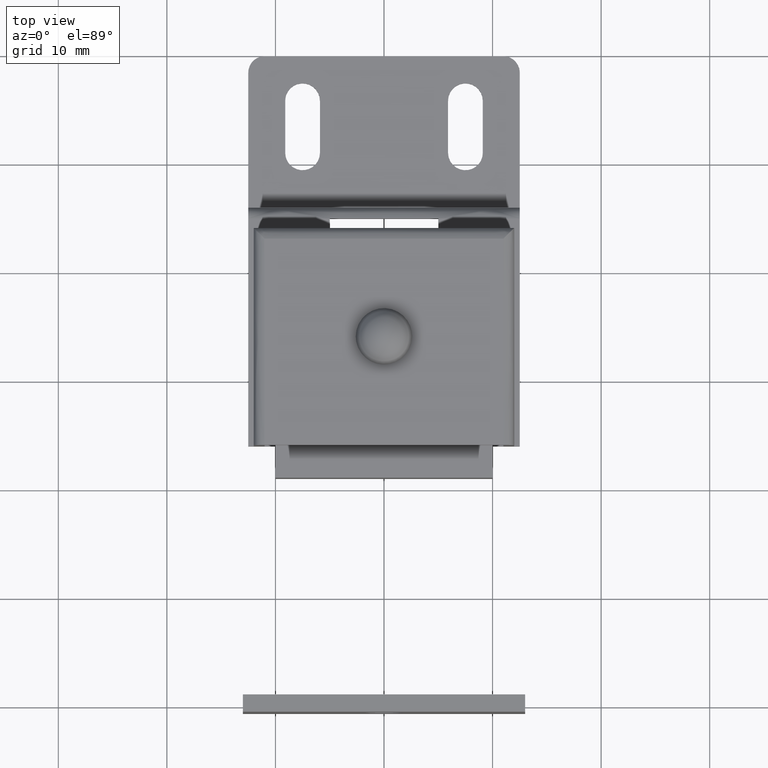
[diagram: clean part render]
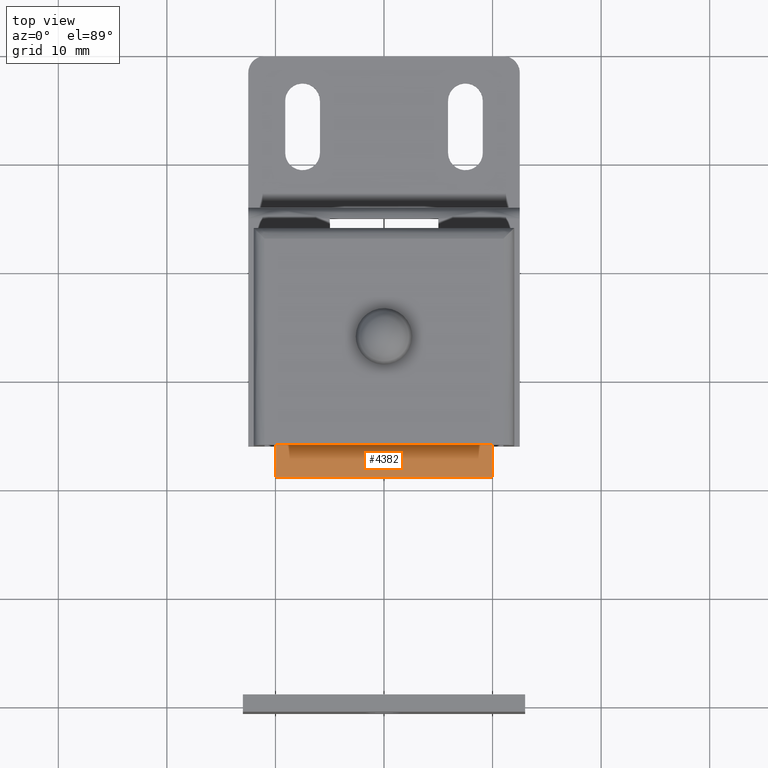
[diagram: same view with one face highlighted and labeled with its STEP entity id]
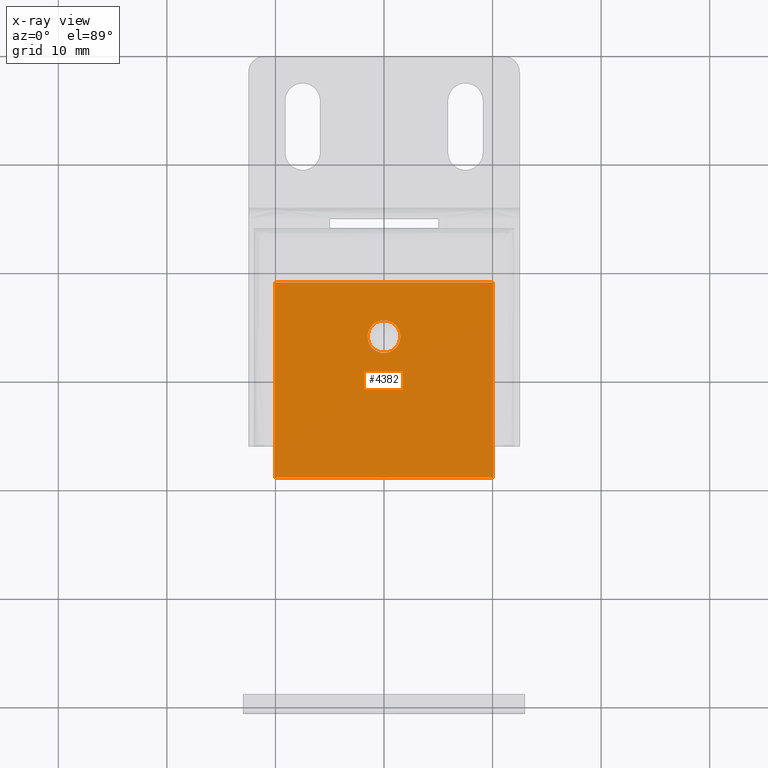
[diagram: x-ray of the same camera — body ghosted, the highlighted face saturated]
A machine part, top view. The second image highlights one B-rep face of the part: STEP entity #4382.
The next image is the same camera in x-ray: the body ghosted, the highlighted face saturated — about 0% of this face is hidden behind the body in this view.
In plain terms, the highlighted face is a freeform B-spline surface patch.
Its self-contained STEP definition (entity closure, byte-faithful):
#4177=CARTESIAN_POINT('',(-0.013089803400145,-24.500057115405070,10.399993999999900));
#4178=VERTEX_POINT('',#4177);
#4179=CARTESIAN_POINT('',(-1.500000000000000,-26.0,10.399993999999900));
#4180=VERTEX_POINT('',#4179);
#4181=CARTESIAN_POINT('',(-0.013089803400145,-24.500057115405070,10.399993999999896));
#4182=CARTESIAN_POINT('',(-1.499999999999999,-24.513033184258809,10.399993999999900));
#4183=CARTESIAN_POINT('',(-1.500000000000000,-26.0,10.399993999999900));
#4191=(BOUNDED_CURVE()B_SPLINE_CURVE(2,(#4181,#4182,#4183),.UNSPECIFIED.,.F.,.U.)B_SPLINE_CURVE_WITH_KNOTS((3,3),(0.751539894352906,1.0),.UNSPECIFIED.)CURVE()GEOMETRIC_REPRESENTATION_ITEM()RATIONAL_B_SPLINE_CURVE((0.996414028058938,0.708910879641168,1.0))REPRESENTATION_ITEM(''));
#4192=EDGE_CURVE('',#4178,#4180,#4191,.T.);
#4194=CARTESIAN_POINT('',(0.013089803400145,-27.499942884594930,10.399993999999900));
#4195=VERTEX_POINT('',#4194);
#4196=CARTESIAN_POINT('',(-1.500000000000000,-26.0,10.399993999999900));
#4197=CARTESIAN_POINT('',(-1.500000000000000,-27.500000000000004,10.399993999999900));
#4198=CARTESIAN_POINT('',(0.0,-27.500000000000000,10.399993999999900));
#4199=CARTESIAN_POINT('',(0.006545026307349,-27.500000000000000,10.399993999999904));
#4200=CARTESIAN_POINT('',(0.013089803400145,-27.499942884594926,10.399993999999896));
#4208=(BOUNDED_CURVE()B_SPLINE_CURVE(2,(#4196,#4197,#4198,#4199,#4200),.UNSPECIFIED.,.F.,.U.)B_SPLINE_CURVE_WITH_KNOTS((3,2,3),(0.0,0.250000000000000,0.251539894352906),.UNSPECIFIED.)CURVE()GEOMETRIC_REPRESENTATION_ITEM()RATIONAL_B_SPLINE_CURVE((1.0,0.707106781186548,1.0,0.998195901545379,0.996414028058938))REPRESENTATION_ITEM(''));
#4209=EDGE_CURVE('',#4180,#4195,#4208,.T.);
#4276=CARTESIAN_POINT('',(1.500000000000000,-26.0,10.399993999999900));
#4277=VERTEX_POINT('',#4276);
#4278=CARTESIAN_POINT('',(1.500000000000000,-26.0,10.399993999999900));
#4279=CARTESIAN_POINT('',(1.500000000000000,-24.500000000000004,10.399993999999900));
#4280=CARTESIAN_POINT('',(0.0,-24.500000000000000,10.399993999999900));
#4281=CARTESIAN_POINT('',(-0.006545026307349,-24.499999999999996,10.399993999999904));
#4282=CARTESIAN_POINT('',(-0.013089803400145,-24.500057115405070,10.399993999999896));
#4290=(BOUNDED_CURVE()B_SPLINE_CURVE(2,(#4278,#4279,#4280,#4281,#4282),.UNSPECIFIED.,.F.,.U.)B_SPLINE_CURVE_WITH_KNOTS((3,2,3),(0.500000000000000,0.750000000000000,0.751539894352906),.UNSPECIFIED.)CURVE()GEOMETRIC_REPRESENTATION_ITEM()RATIONAL_B_SPLINE_CURVE((1.0,0.707106781186548,1.0,0.998195901545379,0.996414028058938))REPRESENTATION_ITEM(''));
#4291=EDGE_CURVE('',#4277,#4178,#4290,.T.);
#4325=CARTESIAN_POINT('',(0.013089803400145,-27.499942884594926,10.399993999999896));
#4326=CARTESIAN_POINT('',(1.499999999999999,-27.486966815741191,10.399993999999900));
#4327=CARTESIAN_POINT('',(1.500000000000000,-26.0,10.399993999999900));
#4335=(BOUNDED_CURVE()B_SPLINE_CURVE(2,(#4325,#4326,#4327),.UNSPECIFIED.,.F.,.U.)B_SPLINE_CURVE_WITH_KNOTS((3,3),(0.251539894352906,0.500000000000000),.UNSPECIFIED.)CURVE()GEOMETRIC_REPRESENTATION_ITEM()RATIONAL_B_SPLINE_CURVE((0.996414028058938,0.708910879641168,1.0))REPRESENTATION_ITEM(''));
#4336=EDGE_CURVE('',#4195,#4277,#4335,.T.);
#4341=CARTESIAN_POINT('',(10.999000061136121,-39.899099965112512,10.399993999999900));
#4342=CARTESIAN_POINT('',(-10.999002597577970,-39.899099965112512,10.399993999999900));
#4343=CARTESIAN_POINT('',(10.999000061136121,-20.100899552089860,10.399993999999900));
#4344=CARTESIAN_POINT('',(-10.999002597577970,-20.100899552089860,10.399993999999900));
#4345=B_SPLINE_SURFACE_WITH_KNOTS('',1,1,((#4341,#4343),(#4342,#4344)),.UNSPECIFIED.,.F.,.F.,.U.,(2,2),(2,2),(0.0,21.998002658714089),(0.0,19.798200413022641),.UNSPECIFIED.);
#4346=CARTESIAN_POINT('',(-10.000002000000000,-39.0,10.399993999999900));
#4347=VERTEX_POINT('',#4346);
#4348=CARTESIAN_POINT('',(10.0,-39.0,10.399993999999900));
#4349=VERTEX_POINT('',#4348);
#4350=CARTESIAN_POINT('',(-10.000002000000000,-39.0,10.399993999999900));
#4351=CARTESIAN_POINT('',(10.0,-39.0,10.399993999999900));
#4352=QUASI_UNIFORM_CURVE('',1,(#4350,#4351),.UNSPECIFIED.,.F.,.U.);
#4353=EDGE_CURVE('',#4347,#4349,#4352,.T.);
#4354=ORIENTED_EDGE('',*,*,#4353,.T.);
#4355=CARTESIAN_POINT('',(10.0,-21.0,10.399993999999900));
#4356=VERTEX_POINT('',#4355);
#4357=CARTESIAN_POINT('',(10.0,-21.0,10.399993999999900));
#4358=CARTESIAN_POINT('',(10.0,-39.0,10.399993999999900));
#4359=QUASI_UNIFORM_CURVE('',1,(#4357,#4358),.UNSPECIFIED.,.F.,.U.);
#4360=EDGE_CURVE('',#4356,#4349,#4359,.T.);
#4361=ORIENTED_EDGE('',*,*,#4360,.F.);
#4362=CARTESIAN_POINT('',(-10.000002000000000,-21.0,10.399993999999900));
#4363=VERTEX_POINT('',#4362);
#4364=CARTESIAN_POINT('',(-10.000002000000000,-21.0,10.399993999999900));
#4365=CARTESIAN_POINT('',(10.0,-21.0,10.399993999999900));
#4366=QUASI_UNIFORM_CURVE('',1,(#4364,#4365),.UNSPECIFIED.,.F.,.U.);
#4367=EDGE_CURVE('',#4363,#4356,#4366,.T.);
#4368=ORIENTED_EDGE('',*,*,#4367,.F.);
#4369=CARTESIAN_POINT('',(-10.000002000000000,-21.0,10.399993999999900));
#4370=CARTESIAN_POINT('',(-10.000002000000000,-39.0,10.399993999999900));
#4371=QUASI_UNIFORM_CURVE('',1,(#4369,#4370),.UNSPECIFIED.,.F.,.U.);
#4372=EDGE_CURVE('',#4363,#4347,#4371,.T.);
#4373=ORIENTED_EDGE('',*,*,#4372,.T.);
#4374=EDGE_LOOP('',(#4354,#4361,#4368,#4373));
#4375=FACE_OUTER_BOUND('',#4374,.T.);
#4376=ORIENTED_EDGE('',*,*,#4209,.F.);
#4377=ORIENTED_EDGE('',*,*,#4192,.F.);
#4378=ORIENTED_EDGE('',*,*,#4291,.F.);
#4379=ORIENTED_EDGE('',*,*,#4336,.F.);
#4380=EDGE_LOOP('',(#4376,#4377,#4378,#4379));
#4381=FACE_BOUND('',#4380,.T.);
#4382=ADVANCED_FACE('',(#4375,#4381),#4345,.F.);